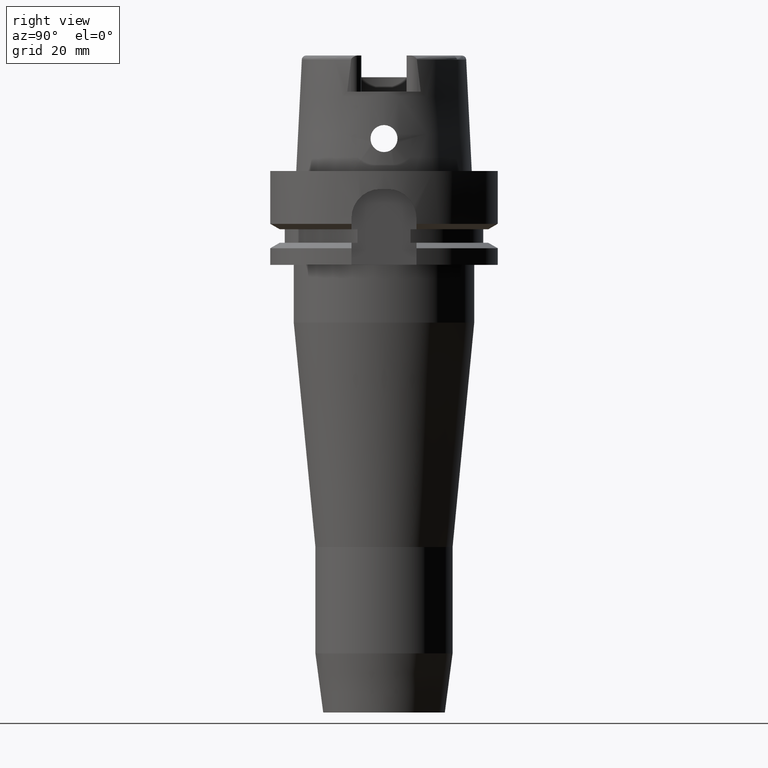
[diagram: clean part render]
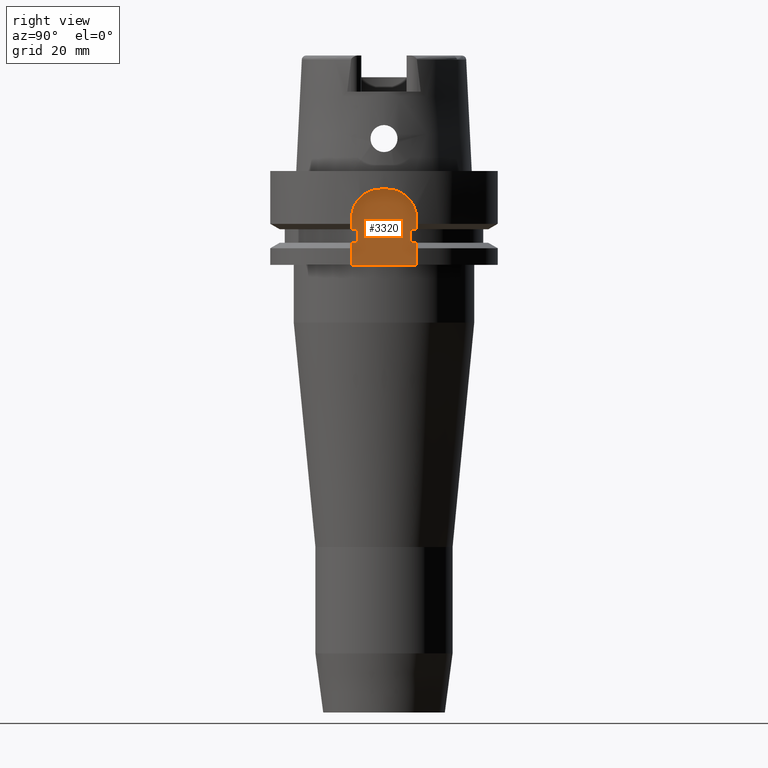
[diagram: same view with one face highlighted and labeled with its STEP entity id]
A machine part, right view. The second image highlights one B-rep face of the part: STEP entity #3320.
In plain terms, the highlighted planar face has unit normal (1, 0, 0).
Its self-contained STEP definition (entity closure, byte-faithful):
#755=DIRECTION('',(2.366280491871E-14,1.E0,0.E0));
#756=VECTOR('',#755,1.651530771650E0);
#757=CARTESIAN_POINT('',(2.65E1,7.348469228350E0,-1.6125E1));
#758=LINE('',#757,#756);
#906=DIRECTION('',(-2.366280491871E-14,1.E0,0.E0));
#907=VECTOR('',#906,1.651530771650E0);
#908=CARTESIAN_POINT('',(2.65E1,-9.E0,-1.6125E1));
#909=LINE('',#908,#907);
#1011=DIRECTION('',(0.E0,1.E0,0.E0));
#1012=VECTOR('',#1011,1.8E1);
#1013=CARTESIAN_POINT('',(2.65E1,-9.E0,-2.6E1));
#1014=LINE('',#1013,#1012);
#1095=DIRECTION('',(0.E0,0.E0,1.E0));
#1096=VECTOR('',#1095,6.125E0);
#1097=CARTESIAN_POINT('',(2.65E1,-9.E0,-2.6E1));
#1098=LINE('',#1097,#1096);
#1102=DIRECTION('',(-2.366280491871E-14,1.E0,0.E0));
#1103=VECTOR('',#1102,1.651530771650E0);
#1104=CARTESIAN_POINT('',(2.65E1,-9.E0,-1.9875E1));
#1105=LINE('',#1104,#1103);
#1109=DIRECTION('',(0.E0,0.E0,1.E0));
#1110=VECTOR('',#1109,3.125E0);
#1111=CARTESIAN_POINT('',(2.65E1,-9.E0,-1.6125E1));
#1112=LINE('',#1111,#1110);
#1116=CARTESIAN_POINT('',(2.65E1,-1.E0,-1.3E1));
#1117=DIRECTION('',(-1.E0,0.E0,0.E0));
#1118=DIRECTION('',(0.E0,-1.E0,0.E0));
#1119=AXIS2_PLACEMENT_3D('',#1116,#1117,#1118);
#1124=DIRECTION('',(0.E0,1.E0,0.E0));
#1125=VECTOR('',#1124,2.000000000001E0);
#1126=CARTESIAN_POINT('',(2.65E1,-1.E0,-5.E0));
#1127=LINE('',#1126,#1125);
#1131=CARTESIAN_POINT('',(2.65E1,1.E0,-1.3E1));
#1132=DIRECTION('',(-1.E0,0.E0,0.E0));
#1133=DIRECTION('',(0.E0,1.250666237240E-13,1.E0));
#1134=AXIS2_PLACEMENT_3D('',#1131,#1132,#1133);
#1139=DIRECTION('',(0.E0,0.E0,-1.E0));
#1140=VECTOR('',#1139,3.125E0);
#1141=CARTESIAN_POINT('',(2.65E1,9.E0,-1.3E1));
#1142=LINE('',#1141,#1140);
#1146=DIRECTION('',(2.366280491871E-14,1.E0,0.E0));
#1147=VECTOR('',#1146,1.651530771650E0);
#1148=CARTESIAN_POINT('',(2.65E1,7.348469228350E0,-1.9875E1));
#1149=LINE('',#1148,#1147);
#1153=DIRECTION('',(0.E0,0.E0,-1.E0));
#1154=VECTOR('',#1153,6.125E0);
#1155=CARTESIAN_POINT('',(2.65E1,9.E0,-1.9875E1));
#1156=LINE('',#1155,#1154);
#1261=DIRECTION('',(0.E0,0.E0,-1.E0));
#1262=VECTOR('',#1261,3.75E0);
#1263=CARTESIAN_POINT('',(2.65E1,-7.348469228350E0,-1.6125E1));
#1264=LINE('',#1263,#1262);
#1445=DIRECTION('',(0.E0,0.E0,1.E0));
#1446=VECTOR('',#1445,3.75E0);
#1447=CARTESIAN_POINT('',(2.65E1,7.348469228350E0,-1.9875E1));
#1448=LINE('',#1447,#1446);
#2468=CARTESIAN_POINT('',(2.65E1,-9.E0,-2.6E1));
#2469=VERTEX_POINT('',#2468);
#2470=CARTESIAN_POINT('',(2.65E1,9.E0,-2.6E1));
#2471=VERTEX_POINT('',#2470);
#2549=CARTESIAN_POINT('',(2.65E1,-7.348469228350E0,-1.9875E1));
#2551=VERTEX_POINT('',#2549);
#2552=CARTESIAN_POINT('',(2.65E1,-9.E0,-1.9875E1));
#2553=VERTEX_POINT('',#2552);
#2554=CARTESIAN_POINT('',(2.65E1,9.E0,-1.9875E1));
#2555=VERTEX_POINT('',#2554);
#2556=CARTESIAN_POINT('',(2.65E1,7.348469228350E0,-1.9875E1));
#2557=VERTEX_POINT('',#2556);
#2560=CARTESIAN_POINT('',(2.65E1,7.348469228350E0,-1.6125E1));
#2561=VERTEX_POINT('',#2560);
#2566=CARTESIAN_POINT('',(2.65E1,-7.348469228350E0,-1.6125E1));
#2567=VERTEX_POINT('',#2566);
#2568=CARTESIAN_POINT('',(2.65E1,-9.E0,-1.6125E1));
#2569=VERTEX_POINT('',#2568);
#2570=CARTESIAN_POINT('',(2.65E1,-9.E0,-1.3E1));
#2571=VERTEX_POINT('',#2570);
#2572=CARTESIAN_POINT('',(2.65E1,-1.000000000001E0,-5.E0));
#2573=VERTEX_POINT('',#2572);
#2574=CARTESIAN_POINT('',(2.65E1,1.E0,-5.E0));
#2575=VERTEX_POINT('',#2574);
#2576=CARTESIAN_POINT('',(2.65E1,9.E0,-1.3E1));
#2577=VERTEX_POINT('',#2576);
#2578=CARTESIAN_POINT('',(2.65E1,9.E0,-1.6125E1));
#2579=VERTEX_POINT('',#2578);
#3289=CARTESIAN_POINT('',(2.65E1,0.E0,0.E0));
#3290=DIRECTION('',(1.E0,0.E0,0.E0));
#3291=DIRECTION('',(0.E0,0.E0,1.E0));
#3292=AXIS2_PLACEMENT_3D('',#3289,#3290,#3291);
#3293=PLANE('',#3292);
#3294=ORIENTED_EDGE('',*,*,#3222,.F.);
#3296=ORIENTED_EDGE('',*,*,#3295,.T.);
#3298=ORIENTED_EDGE('',*,*,#3297,.T.);
#3300=ORIENTED_EDGE('',*,*,#3299,.F.);
#3301=ORIENTED_EDGE('',*,*,#3163,.F.);
#3303=ORIENTED_EDGE('',*,*,#3302,.T.);
#3305=ORIENTED_EDGE('',*,*,#3304,.T.);
#3307=ORIENTED_EDGE('',*,*,#3306,.T.);
#3309=ORIENTED_EDGE('',*,*,#3308,.T.);
#3311=ORIENTED_EDGE('',*,*,#3310,.T.);
#3312=ORIENTED_EDGE('',*,*,#3052,.F.);
#3314=ORIENTED_EDGE('',*,*,#3313,.F.);
#3316=ORIENTED_EDGE('',*,*,#3315,.T.);
#3317=ORIENTED_EDGE('',*,*,#3279,.T.);
#3318=EDGE_LOOP('',(#3294,#3296,#3298,#3300,#3301,#3303,#3305,#3307,#3309,#3311,
#3312,#3314,#3316,#3317));
#3319=FACE_OUTER_BOUND('',#3318,.F.);
#1120=CIRCLE('',#1119,8.E0);
#1135=CIRCLE('',#1134,8.E0);
#3052=EDGE_CURVE('',#2561,#2579,#758,.T.);
#3163=EDGE_CURVE('',#2569,#2567,#909,.T.);
#3222=EDGE_CURVE('',#2469,#2471,#1014,.T.);
#3279=EDGE_CURVE('',#2555,#2471,#1156,.T.);
#3295=EDGE_CURVE('',#2469,#2553,#1098,.T.);
#3297=EDGE_CURVE('',#2553,#2551,#1105,.T.);
#3299=EDGE_CURVE('',#2567,#2551,#1264,.T.);
#3302=EDGE_CURVE('',#2569,#2571,#1112,.T.);
#3304=EDGE_CURVE('',#2571,#2573,#1120,.T.);
#3306=EDGE_CURVE('',#2573,#2575,#1127,.T.);
#3308=EDGE_CURVE('',#2575,#2577,#1135,.T.);
#3310=EDGE_CURVE('',#2577,#2579,#1142,.T.);
#3313=EDGE_CURVE('',#2557,#2561,#1448,.T.);
#3315=EDGE_CURVE('',#2557,#2555,#1149,.T.);
#3320=ADVANCED_FACE('',(#3319),#3293,.T.);